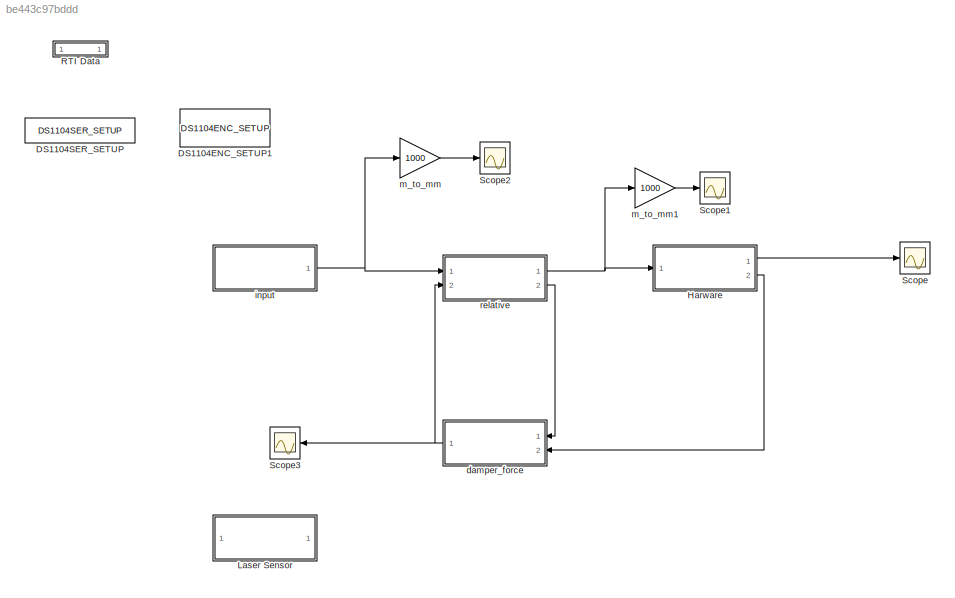
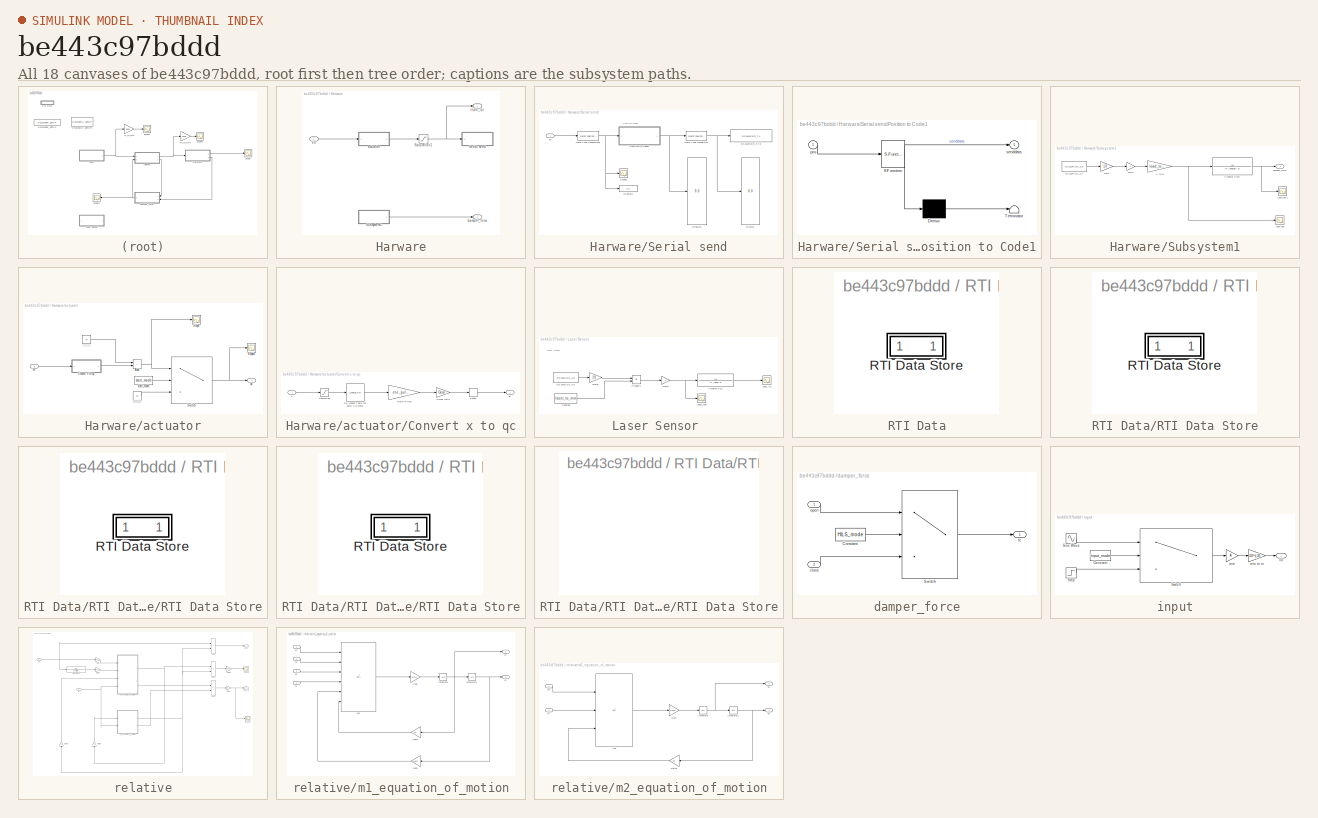
[diagram: thumbnail index - all 18 canvases of the model, root first then tree order]
MODEL slx_be443c97bddd
KIND model
CONFIG AbsTol = auto
CONFIG EnableMultiTasking = off
CONFIG FixedStep = 0.002
CONFIG InitFcn = % mode\nstart_mode = 1;\ninput_mode = 1;\nHILS_mode = 1;\n\n% input parameter\nA = 1;\nHz = 1;\nqc = 26500;\n\n% model parameter\nm1 = 1.5;\nm2 = 6.4;\nk1 = 2200;\nk2 = 405;\nc1 = 150;\nc2 = 7;\n\n% convert parameter\nGear = 113;\nenc_pulse = 500;\nload_to_N = 2;\nlaser_to_mm = 28\n\n% lowpass\nCutoff_diff = 20;\nT_diff = 1/(2*pi*Cutoff_diff);\nCutoff_loadcell = 20;\nT_loadcell = 1/(2*pi*Cutoff_loadcell);\nCutoff_laser = 20;\n...<+35ch>
CONFIG MaxStep = auto
CONFIG MinStep = auto
CONFIG PostLoadFcn = , if any(exist('dsrtsu_mdlpostloadfcn', 'file') == [2, 3, 6]), try dsrtsu_mdlpostloadfcn('Execute', bdroot); catch fprintf('Error in PostLoadFcn (dsrtsu_mdlpostloadfcn) for model "%s":\n %s\n', bdroot, lasterr); end, end, \n
CONFIG RelTol = 1e-3
CONFIG SampleTimeConstraint = Unconstrained
CONFIG Solver = ode4
CONFIG SolverName = ode4
CONFIG StartTime = 0.0
CONFIG StopTime = Inf
BLOCK [Reference] DS1104ENC_SETUP1  REF=rtilib1104/DS1104 MASTER PPC/DS1104ENC_SETUP
  Ports = []
  SourceBlock = rtilib1104/DS1104 MASTER PPC/DS1104ENC_SETUP
  SourceProductName = dSPACE RTI1104
  SourceType = RTI
BLOCK [Reference] DS1104SER_SETUP  REF=rti1104serlib/DS1104SER_SETUP
  Ports = []
  SourceBlock = rti1104serlib/DS1104SER_SETUP
  SourceType = RTI
BLOCK [SubSystem] Harware
  Ports = [1, 2]
  RequestExecContextInheritance = off
BLOCK [Saturate] Harware/Saturation2
  LowerLimit = 0
  UpperLimit = 47000
BLOCK [SubSystem] Harware/Serial send
  Ports = [1]
  RequestExecContextInheritance = off
BLOCK [Reference] Harware/Serial send/DS1104SER_TX3  REF=rti1104serlib/DS1104SER_TX
  Ports = [1]
  SourceBlock = rti1104serlib/DS1104SER_TX
  SourceType = RTI
BLOCK [DataTypeConversion] Harware/Serial send/Data Type Conversion
  OutDataTypeStr = uint8
  RndMeth = Floor
  SaturateOnIntegerOverflow = off
BLOCK [DataTypeConversion] Harware/Serial send/Data Type Conversion1
  OutDataTypeStr = double
  RndMeth = Ceiling
  SaturateOnIntegerOverflow = off
BLOCK [Display] Harware/Serial send/Display
  Decimation = 1
  Ports = [1]
BLOCK [Display] Harware/Serial send/Display1
  Decimation = 1
  Format = long
  Ports = [1]
BLOCK [Display] Harware/Serial send/Display2
  Decimation = 1
  Format = long
  Ports = [1]
BLOCK [SubSystem] Harware/Serial send/Position to Code1
  ErrorFcn = Stateflow.Translate.translate
  PermitHierarchicalResolution = ExplicitOnly
  Ports = [1, 1]
  RequestExecContextInheritance = off
  SFBlockType = MATLAB Function
  TreatAsAtomicUnit = on
BLOCK [Demux] Harware/Serial send/Position to Code1/ Demux 
  Outputs = 1
  Ports = [1, 1]
BLOCK [S-Function] Harware/Serial send/Position to Code1/ SFunction 
  EnableBusSupport = off
  FunctionName = sf_sfun
  PortCounts = [1 2]
  Ports = [1, 2]
  SFcnIsStateOwnerBlock = off
  SFunctionDeploymentMode = off
  Tag = Stateflow S-Function 1
BLOCK [Terminator] Harware/Serial send/Position to Code1/ Terminator 
BLOCK [Inport] Harware/Serial send/Position to Code1/pos
BLOCK [Outport] Harware/Serial send/Position to Code1/senddata
  VectorParamsAs1DForOutWhenUnconnected = off
BLOCK [Scope] Harware/Serial send/Scope2
  Floating = off
  NumInputPorts = 1
  Ports = [1]
  ScopeSpecificationString = Simulink.scopes.TimeScopeBlockCfg('CurrentConfiguration', extmgr.ConfigurationSet(extmgr.Configuration('Core','General UI',true),extmgr.Configuration('Core','Source UI',true),extmgr.Configuration('Sources','WiredSimulink',true,'DataLoggingVariableName','ScopeData2'),extmgr.Configuration('Visuals','Time Domain',true,'SerializedDisplays',{struct('MinYLimReal','17000.00000','MaxYLimReal','37000.00000...<+1465ch>
BLOCK [Inport] Harware/Serial send/x'0
BLOCK [SubSystem] Harware/Subsystem1
  Ports = [0, 1]
  RequestExecContextInheritance = off
BLOCK [Reference] Harware/Subsystem1/DS1104ADC_C7  REF=rtilib1104/DS1104 MASTER PPC/DS1104ADC_C5
  Ports = [0, 1]
  SourceBlock = rtilib1104/DS1104 MASTER PPC/DS1104ADC_C5
  SourceProductName = dSPACE RTI1104
  SourceType = RTI
BLOCK [Gain] Harware/Subsystem1/Gain
  Gain = -1
BLOCK [Gain] Harware/Subsystem1/Gain 
  Gain = 10
BLOCK [TransferFcn] Harware/Subsystem1/Transfer Fcn2
  Denominator = [T_loadcell 1]
BLOCK [Gain] Harware/Subsystem1/V to N
  Gain = load_to_N
BLOCK [Outport] Harware/Subsystem1/damper_force
  VectorParamsAs1DForOutWhenUnconnected = off
BLOCK [Scope] Harware/Subsystem1/load raw
  Floating = off
  NumInputPorts = 1
  Ports = [1]
  ScopeSpecificationString = Simulink.scopes.TimeScopeBlockCfg('CurrentConfiguration', extmgr.ConfigurationSet(extmgr.Configuration('Core','General UI',true),extmgr.Configuration('Core','Source UI',true),extmgr.Configuration('Sources','WiredSimulink',true,'DataLoggingVariableName','ScopeData4'),extmgr.Configuration('Visuals','Time Domain',true),extmgr.Configuration('Tools','Plot Navigation',true),extmgr.Configuration('Tools',...<+40ch>
BLOCK [Scope] Harware/Subsystem1/load raw1
  Floating = off
  NumInputPorts = 1
  Ports = [1]
  ScopeSpecificationString = Simulink.scopes.TimeScopeBlockCfg('CurrentConfiguration', extmgr.ConfigurationSet(extmgr.Configuration('Core','General UI',true),extmgr.Configuration('Core','Source UI',true),extmgr.Configuration('Sources','WiredSimulink',true,'DataLoggingVariableName','ScopeData5'),extmgr.Configuration('Visuals','Time Domain',true),extmgr.Configuration('Tools','Plot Navigation',true),extmgr.Configuration('Tools',...<+40ch>
BLOCK [SubSystem] Harware/actuator
  Ports = [1, 1]
  RequestExecContextInheritance = off
BLOCK [Sum] Harware/actuator/Add
  IconShape = rectangular
  Ports = [2, 1]
BLOCK [SubSystem] Harware/actuator/Convert x to qc
  Ports = [1, 1]
  RequestExecContextInheritance = off
BLOCK [Gain] Harware/actuator/Convert x to qc/1//Gear ratio
  Gain = Gear
BLOCK [Gain] Harware/actuator/Convert x to qc/Rad to Pulse
  Gain = enc_pulse*4/(2*pi)
BLOCK [Rounding] Harware/actuator/Convert x to qc/Round
  Operator = round
BLOCK [Saturate] Harware/actuator/Convert x to qc/Saturation
  LowerLimit = -0.25
  UpperLimit = 0.38
BLOCK [Lookup_n-D] Harware/actuator/Convert x to qc/n-D Lookup Table (90 data) x to theta
  BreakpointsForDimension1 = [-0.0255748\n-0.025224748\n-0.024865444\n-0.024496806\n-0.024118754\n-0.023731207\n-0.023334088\n-0.022927321\n-0.022510829\n-0.022084541\n-0.021648387\n-0.021202299\n-0.020746214\n-0.02028007\n-0.01980381\n-0.019317383\n-0.018820738\n-0.018313834\n-0.01779663\n-0.017269095\n-0.016731201\n-0.016182927\n-0.015624258\n-0.015055189\n-0.014475717\n-0.013885852\n-0.013285608\n-0.012675011\n-0.012054093\n-0.011422895\n-0.010781471\n-...<+720ch>
  BreakpointsForDimension3 = [5, 7]
  ExtrapMethod = Cubic spline
  InternalRulePriority = Speed
  InterpMethod = Cubic spline
  NumberOfTableDimensions = 1
  Ports = [1, 1]
  RndMeth = Simplest
  Table = [-0.785398163\n-0.767944871\n-0.750491578\n-0.733038286\n-0.715584993\n-0.698131701\n-0.680678408\n-0.663225116\n-0.645771823\n-0.628318531\n-0.610865238\n-0.593411946\n-0.575958653\n-0.558505361\n-0.541052068\n-0.523598776\n-0.506145483\n-0.488692191\n-0.471238898\n-0.453785606\n-0.436332313\n-0.41887902\n-0.401425728\n-0.383972435\n-0.366519143\n-0.34906585\n-0.331612558\n-0.314159265\n-0.296705973\n-0.27925268\n-0.261799388...<+717ch>
BLOCK [Outport] Harware/actuator/Convert x to qc/qc
  VectorParamsAs1DForOutWhenUnconnected = off
BLOCK [Inport] Harware/actuator/Convert x to qc/x
BLOCK [Scope] Harware/actuator/Scope
  Floating = off
  NumInputPorts = 1
  Ports = [1]
  ScopeSpecificationString = Simulink.scopes.TimeScopeBlockCfg('CurrentConfiguration', extmgr.ConfigurationSet(extmgr.Configuration('Core','General UI',true),extmgr.Configuration('Core','Source UI',true),extmgr.Configuration('Sources','WiredSimulink',true,'DataLoggingVariableName','ScopeData2'),extmgr.Configuration('Visuals','Time Domain',true),extmgr.Configuration('Tools','Plot Navigation',true),extmgr.Configuration('Tools',...<+40ch>
BLOCK [Scope] Harware/actuator/Scope1
  Floating = off
  NumInputPorts = 1
  Ports = [1]
  ScopeSpecificationString = Simulink.scopes.TimeScopeBlockCfg('CurrentConfiguration', extmgr.ConfigurationSet(extmgr.Configuration('Core','General UI',true),extmgr.Configuration('Core','Source UI',true),extmgr.Configuration('Sources','WiredSimulink',true,'DataLoggingVariableName','ScopeData3'),extmgr.Configuration('Visuals','Time Domain',true),extmgr.Configuration('Tools','Plot Navigation',true),extmgr.Configuration('Tools',...<+40ch>
BLOCK [Switch] Harware/actuator/Switch
  Criteria = u2 > Threshold
  InputSameDT = off
  SaturateOnIntegerOverflow = off
BLOCK [Outport] Harware/actuator/qc
  VectorParamsAs1DForOutWhenUnconnected = off
BLOCK [Constant] Harware/actuator/start_mode
  Value = start_mode
BLOCK [Inport] Harware/actuator/x'0
BLOCK [Constant] Harware/actuator/初期定数
  Value = qc
BLOCK [Constant] Harware/actuator/振動中心
  Value = qc
BLOCK [Outport] Harware/damper_force
  Port = 2
  VectorParamsAs1DForOutWhenUnconnected = off
BLOCK [Outport] Harware/input_qc
  VectorParamsAs1DForOutWhenUnconnected = off
BLOCK [Inport] Harware/x'0
BLOCK [SubSystem] Laser Sensor 
  Ports = []
  RequestExecContextInheritance = off
BLOCK [Constant] Laser Sensor /Constant
  Value = laser_to_mm
BLOCK [Reference] Laser Sensor /DS1104ADC_C5  REF=rtilib1104/DS1104 MASTER PPC/DS1104ADC_C5
  Ports = [0, 1]
  SourceBlock = rtilib1104/DS1104 MASTER PPC/DS1104ADC_C5
  SourceProductName = dSPACE RTI1104
  SourceType = RTI
BLOCK [Gain] Laser Sensor /Gain1
  Gain = 10
BLOCK [Gain] Laser Sensor /Gain2
  Gain = -1
BLOCK [Product] Laser Sensor /Product1
  Ports = [2, 1]
BLOCK [TransferFcn] Laser Sensor /Transfer Fcn
  Denominator = [T_laser 1]
BLOCK [Scope] Laser Sensor /laser_-x1
  Floating = off
  NumInputPorts = 1
  Ports = [1]
  ScopeSpecificationString = Simulink.scopes.TimeScopeBlockCfg('CurrentConfiguration', extmgr.ConfigurationSet(extmgr.Configuration('Core','General UI',true),extmgr.Configuration('Core','Source UI',true),extmgr.Configuration('Sources','WiredSimulink',true,'DataLoggingVariableName','ScopeData1'),extmgr.Configuration('Visuals','Time Domain',true,'SerializedDisplays',{struct('MinYLimReal','-1.00000','MaxYLimReal','1.00000','YLab...<+1359ch>
BLOCK [Scope] Laser Sensor /laser_raw
  Floating = off
  NumInputPorts = 1
  Ports = [1]
  ScopeSpecificationString = Simulink.scopes.TimeScopeBlockCfg('CurrentConfiguration', extmgr.ConfigurationSet(extmgr.Configuration('Core','General UI',true),extmgr.Configuration('Core','Source UI',true),extmgr.Configuration('Sources','WiredSimulink',true,'DataLoggingVariableName','ScopeData1'),extmgr.Configuration('Visuals','Time Domain',true,'SerializedDisplays',{struct('MinYLimReal','-1.00000','MaxYLimReal','1.00000','YLab...<+1359ch>
BLOCK [SubSystem] RTI Data
  CopyFcn = if exist('rtidc'), try,  rtidc('DataHostBlockClbCopy', gcbh); catch, disp(['Warning: ''CopyFcn'' for RTI Data block failed: ' lasterr]); end, end,
  DeleteFcn = if exist('rtidc'), try,  rtidc('DataHostBlockClbDelete', gcbh); catch, disp(['Warning: ''DeleteFcn'' for RTI Data block failed: ' lasterr]); end, end,
  LoadFcn = if exist('rtidc'), try,  rtidc('DataHostBlockClbLoad', gcbh); catch, disp(['Warning: ''LoadFcn'' for RTI Data block failed: ' lasterr]); end, end,
  ModelCloseFcn = if exist('rtidc'), try,  rtidc('DataHostBlockClbModelClose', gcbh); catch, disp(['Warning: ''ModelCloseFcn'' for RTI Data block failed: ' lasterr]); end, end,
  NameChangeFcn = if exist('rtidc'), try,  rtidc('DataHostBlockClbNameChange', gcbh); catch, disp(['Warning: ''NameChangeFcn'' for RTI Data block failed: ' lasterr]); end, end,
  Ports = []
  PostSaveFcn = if exist('rtidc'), try,  rtidc('DataHostBlockClbPostSave', gcbh); catch, disp(['Warning: ''PostSaveFcn'' for RTI Data block failed: ' lasterr]); end, end,
  PreSaveFcn = if exist('rtidc'), try,  rtidc('DataHostBlockClbPreSave', gcbh); catch, disp(['Warning: ''PreSaveFcn'' for RTI Data block failed: ' lasterr]); end, end,
  RequestExecContextInheritance = off
  Tag = struct('RTIDataServer',struct('RTIDataServerVs','2','RTIModelDescription','struct(''main'',''HILS_ralative'',''sub'','''',''isMp'',0)'))
BLOCK [SubSystem] RTI Data/RTI Data Store
  Ports = []
  RequestExecContextInheritance = off
  Tag = struct('private',struct('version',struct('dsVer',uint32(2),'dsVerCreation',uint32(2),'RTI',struct('ver','7.10','type','RTI1104')),'access',struct('type','Model','isPerm',1,'created',['23-Dec-2020 21:16:23'],'modified',['30-Dec-2020 20:58:09'],'location','')),'public',struct('main',struct('data',[]),'sub',struct('name',{{'HILS_ralative'}},'data',{{struct('TH',struct('thTaskInfo',struct('taskType',{...<+891ch>
BLOCK [SubSystem] RTI Data/RTI Data Store/RTI Data Store
  Ports = []
  RequestExecContextInheritance = off
BLOCK [SubSystem] RTI Data/RTI Data Store/RTI Data Store/RTI Data Store
  Ports = []
  RequestExecContextInheritance = off
BLOCK [SubSystem] RTI Data/RTI Data Store/RTI Data Store/RTI Data Store/RTI Data Store
  Ports = []
  RequestExecContextInheritance = off
BLOCK [Scope] Scope
  Floating = off
  NumInputPorts = 1
  Ports = [1]
  ScopeSpecificationString = Simulink.scopes.TimeScopeBlockCfg('CurrentConfiguration', extmgr.ConfigurationSet(extmgr.Configuration('Core','General UI',true),extmgr.Configuration('Core','Source UI',true),extmgr.Configuration('Sources','WiredSimulink',true,'DataLoggingVariableName','ScopeData1'),extmgr.Configuration('Visuals','Time Domain',true,'SerializedDisplays',{struct('MinYLimReal','23977.625','MaxYLimReal','28961.375','Y...<+1382ch>
BLOCK [Scope] Scope1
  Floating = off
  NumInputPorts = 1
  Ports = [1]
  ScopeSpecificationString = Simulink.scopes.TimeScopeBlockCfg('CurrentConfiguration', extmgr.ConfigurationSet(extmgr.Configuration('Core','General UI',true),extmgr.Configuration('Core','Source UI',true),extmgr.Configuration('Sources','WiredSimulink',true,'DataLoggingVariableName','ScopeData1'),extmgr.Configuration('Visuals','Time Domain',true,'SerializedDisplays',{struct('MinYLimReal','-2.95308','MaxYLimReal','2.95308','YLab...<+1367ch>
BLOCK [Scope] Scope2
  Floating = off
  NumInputPorts = 1
  Ports = [1]
  ScopeSpecificationString = Simulink.scopes.TimeScopeBlockCfg('CurrentConfiguration', extmgr.ConfigurationSet(extmgr.Configuration('Core','General UI',true),extmgr.Configuration('Core','Source UI',true),extmgr.Configuration('Sources','WiredSimulink',true,'DataLoggingVariableName','ScopeData2'),extmgr.Configuration('Visuals','Time Domain',true,'SerializedDisplays',{struct('MinYLimReal','-1.25','MaxYLimReal','1.25','YLabelReal...<+1348ch>
BLOCK [Scope] Scope3
  Floating = off
  NumInputPorts = 1
  Ports = [1]
  ScopeSpecificationString = Simulink.scopes.TimeScopeBlockCfg('CurrentConfiguration', extmgr.ConfigurationSet(extmgr.Configuration('Core','General UI',true),extmgr.Configuration('Core','Source UI',true),extmgr.Configuration('Sources','WiredSimulink',true,'DataLoggingVariableName','ScopeData3'),extmgr.Configuration('Visuals','Time Domain',true,'SerializedDisplays',{struct('MinYLimReal','-0.11322','MaxYLimReal','0.11322','YLab...<+1359ch>
BLOCK [SubSystem] damper_force
  Ports = [2, 1]
  RequestExecContextInheritance = off
BLOCK [Constant] damper_force/Constant
  Value = HILS_mode
BLOCK [Switch] damper_force/Switch
  Criteria = u2 > Threshold
  InputSameDT = off
  SaturateOnIntegerOverflow = off
BLOCK [Inport] damper_force/close
  Port = 2
BLOCK [Outport] damper_force/fc
  VectorParamsAs1DForOutWhenUnconnected = off
BLOCK [Inport] damper_force/open
BLOCK [SubSystem] input
  Ports = [0, 1]
  RequestExecContextInheritance = off
BLOCK [Constant] input/Constant
  Value = input_mode
BLOCK [Sin] input/Sine Wave
  Frequency = 2*pi*Hz
  Ports = [0, 1]
  SampleTime = 0
BLOCK [Step] input/Step
  SampleTime = 0
  Time = 2
BLOCK [Switch] input/Switch
  Criteria = u2 > Threshold
  InputSameDT = off
  SaturateOnIntegerOverflow = off
BLOCK [Gain] input/mm
  Gain = A
BLOCK [Gain] input/mm to m
  Gain = 10^(-3)
BLOCK [Outport] input/x0
  VectorParamsAs1DForOutWhenUnconnected = off
BLOCK [Gain] m_to_mm
  Gain = 1000
BLOCK [Gain] m_to_mm1
  Gain = 1000
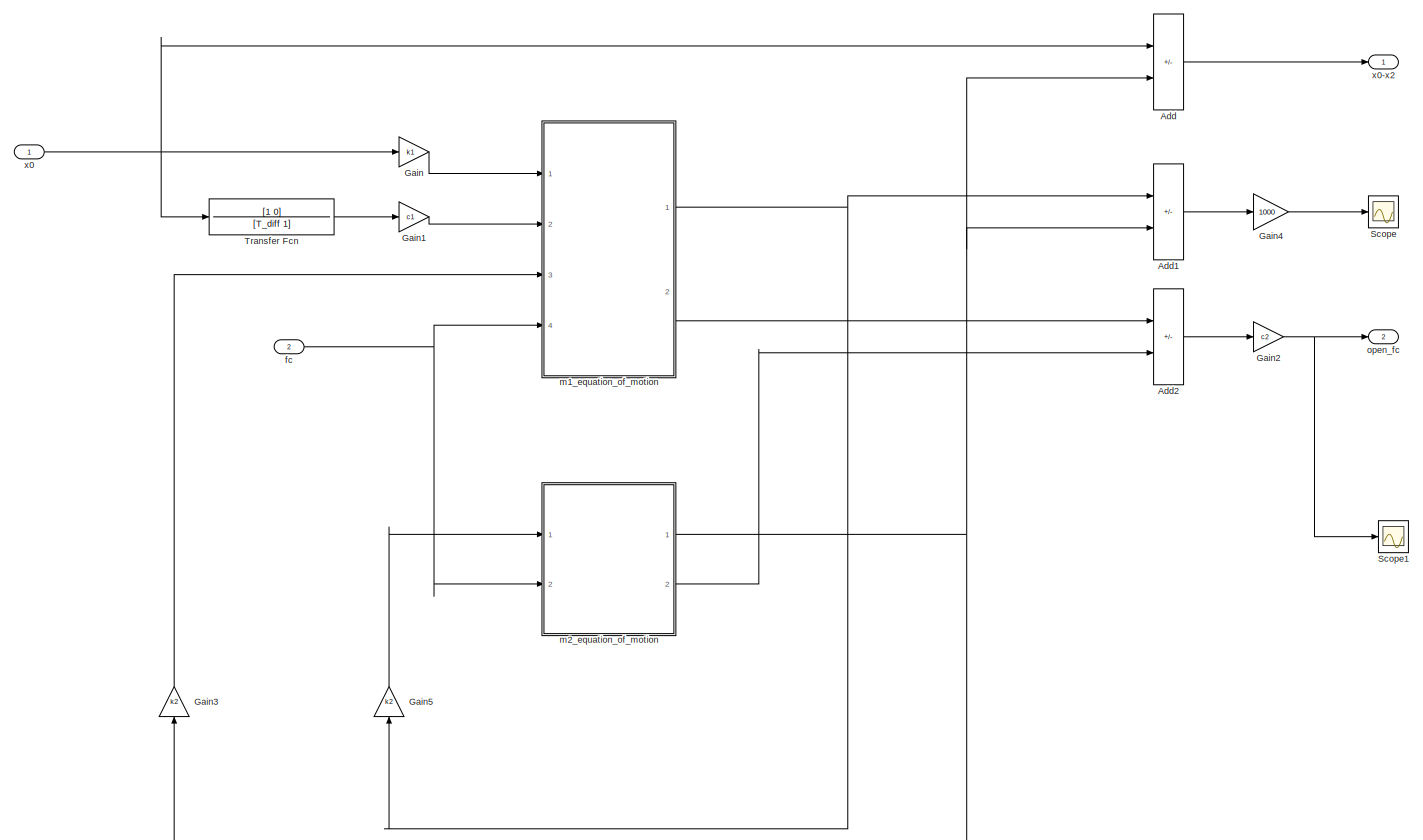
[diagram: relative - part 1/1, most of the canvas]
BLOCK [SubSystem] relative
  Ports = [2, 2]
  RequestExecContextInheritance = off
BLOCK [Sum] relative/Add
  IconShape = rectangular
  Inputs = +-
  Ports = [2, 1]
BLOCK [Sum] relative/Add1
  IconShape = rectangular
  Inputs = -+
  Ports = [2, 1]
BLOCK [Sum] relative/Add2
  IconShape = rectangular
  Inputs = -+
  Ports = [2, 1]
BLOCK [Gain] relative/Gain
  Gain = k1
BLOCK [Gain] relative/Gain1
  Gain = c1
BLOCK [Gain] relative/Gain2
  Gain = c2
BLOCK [Gain] relative/Gain3
  Gain = k2
  NameLocation = right
BLOCK [Gain] relative/Gain4
  Gain = 1000
BLOCK [Gain] relative/Gain5
  Gain = k2
  NameLocation = right
BLOCK [Scope] relative/Scope
  Floating = off
  NumInputPorts = 1
  Ports = [1]
  ScopeSpecificationString = Simulink.scopes.TimeScopeBlockCfg('CurrentConfiguration', extmgr.ConfigurationSet(extmgr.Configuration('Core','General UI',true),extmgr.Configuration('Core','Source UI',true),extmgr.Configuration('Sources','WiredSimulink',true),extmgr.Configuration('Visuals','Time Domain',true,'SerializedDisplays',{struct('MinYLimReal','-0.00257','MaxYLimReal','0.00257','YLabelReal','','MinYLimMag','0.00000','MaxY...<+1324ch>
BLOCK [Scope] relative/Scope1
  Floating = off
  NumInputPorts = 1
  Ports = [1]
  ScopeSpecificationString = Simulink.scopes.TimeScopeBlockCfg('CurrentConfiguration', extmgr.ConfigurationSet(extmgr.Configuration('Core','General UI',true),extmgr.Configuration('Core','Source UI',true),extmgr.Configuration('Sources','WiredSimulink',true,'DataLoggingVariableName','ScopeData4'),extmgr.Configuration('Visuals','Time Domain',true,'SerializedDisplays',{struct('MinYLimReal','-0.00257','MaxYLimReal','0.00257','YLab...<+1363ch>
BLOCK [TransferFcn] relative/Transfer Fcn
  Commented = on
  Denominator = [T_diff 1]
  Numerator = [1 0]
BLOCK [Inport] relative/fc
  Port = 2
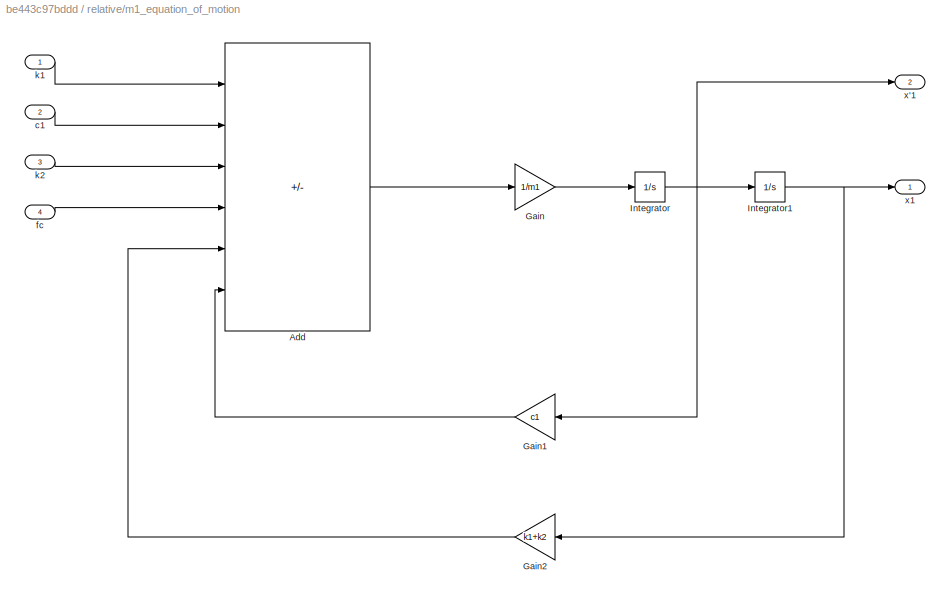
BLOCK [SubSystem] relative/m1_equation_of_motion
  Ports = [4, 2]
  RequestExecContextInheritance = off
BLOCK [Sum] relative/m1_equation_of_motion/Add
  IconShape = rectangular
  Inputs = ++++--
  Ports = [6, 1]
BLOCK [Gain] relative/m1_equation_of_motion/Gain
  Gain = 1/m1
BLOCK [Gain] relative/m1_equation_of_motion/Gain1
  Gain = c1
BLOCK [Gain] relative/m1_equation_of_motion/Gain2
  Gain = k1+k2
BLOCK [Integrator] relative/m1_equation_of_motion/Integrator
  Ports = [1, 1]
BLOCK [Integrator] relative/m1_equation_of_motion/Integrator1
  Ports = [1, 1]
BLOCK [Inport] relative/m1_equation_of_motion/c1
  Port = 2
BLOCK [Inport] relative/m1_equation_of_motion/fc
  Port = 4
BLOCK [Inport] relative/m1_equation_of_motion/k1
BLOCK [Inport] relative/m1_equation_of_motion/k2
  Port = 3
BLOCK [Outport] relative/m1_equation_of_motion/x'1
  Port = 2
  VectorParamsAs1DForOutWhenUnconnected = off
BLOCK [Outport] relative/m1_equation_of_motion/x1
  VectorParamsAs1DForOutWhenUnconnected = off
BLOCK [SubSystem] relative/m2_equation_of_motion
  Ports = [2, 2]
  RequestExecContextInheritance = off
BLOCK [Sum] relative/m2_equation_of_motion/Add
  IconShape = rectangular
  Inputs = +--
  Ports = [3, 1]
BLOCK [Gain] relative/m2_equation_of_motion/Gain
  Gain = 1/m2
BLOCK [Gain] relative/m2_equation_of_motion/Gain2
  Gain = k2
BLOCK [Integrator] relative/m2_equation_of_motion/Integrator
  Ports = [1, 1]
BLOCK [Integrator] relative/m2_equation_of_motion/Integrator1
  Ports = [1, 1]
BLOCK [Inport] relative/m2_equation_of_motion/fc
  Port = 2
BLOCK [Inport] relative/m2_equation_of_motion/k2
BLOCK [Outport] relative/m2_equation_of_motion/x'2
  Port = 2
  VectorParamsAs1DForOutWhenUnconnected = off
BLOCK [Outport] relative/m2_equation_of_motion/x2
  VectorParamsAs1DForOutWhenUnconnected = off
BLOCK [Outport] relative/open_fc
  Port = 2
  VectorParamsAs1DForOutWhenUnconnected = off
BLOCK [Inport] relative/x0
BLOCK [Outport] relative/x0-x2
  VectorParamsAs1DForOutWhenUnconnected = off
ANNOTATION Harware/Serial send: Position mode
ANNOTATION Laser Sensor : Laser Sensor
NET Harware/Saturation2:1 -> Harware/Serial send:1, Harware/input_qc:1
NET Harware/Serial send/Data Type Conversion1:1 -> Harware/Serial send/Display2:1, Harware/Serial send/Position to Code1:1, Harware/Serial send/Scope2:1
NET Harware/Serial send/Data Type Conversion:1 -> Harware/Serial send/DS1104SER_TX3:1, Harware/Serial send/Display:1
NET Harware/Serial send/Position to Code1:1 -> Harware/Serial send/Data Type Conversion:1, Harware/Serial send/Display1:1
LINE Harware/Serial send/x'0:1 -> Harware/Serial send/Data Type Conversion1:1
LINE Harware/Subsystem1/DS1104ADC_C7:1 -> Harware/Subsystem1/Gain :1
LINE Harware/Subsystem1/Gain :1 -> Harware/Subsystem1/Gain:1
LINE Harware/Subsystem1/Gain:1 -> Harware/Subsystem1/V to N:1
NET Harware/Subsystem1/Transfer Fcn2:1 -> Harware/Subsystem1/damper_force:1, Harware/Subsystem1/load raw1:1
NET Harware/Subsystem1/V to N:1 -> Harware/Subsystem1/Transfer Fcn2:1, Harware/Subsystem1/load raw:1
LINE Harware/Subsystem1:1 -> Harware/damper_force:1
NET Harware/actuator/Add:1 -> Harware/actuator/Scope:1, Harware/actuator/Switch:1
LINE Harware/actuator/Convert x to qc/1//Gear ratio:1 -> Harware/actuator/Convert x to qc/Round:1
LINE Harware/actuator/Convert x to qc/Rad to Pulse:1 -> Harware/actuator/Convert x to qc/1//Gear ratio:1
LINE Harware/actuator/Convert x to qc/Round:1 -> Harware/actuator/Convert x to qc/qc:1
LINE Harware/actuator/Convert x to qc/Saturation:1 -> Harware/actuator/Convert x to qc/n-D Lookup Table (90 data) x to theta:1
LINE Harware/actuator/Convert x to qc/n-D Lookup Table (90 data) x to theta:1 -> Harware/actuator/Convert x to qc/Rad to Pulse:1
LINE Harware/actuator/Convert x to qc/x:1 -> Harware/actuator/Convert x to qc/Saturation:1
LINE Harware/actuator/Convert x to qc:1 -> Harware/actuator/Add:2
NET Harware/actuator/Switch:1 -> Harware/actuator/Scope1:1, Harware/actuator/qc:1
LINE Harware/actuator/start_mode:1 -> Harware/actuator/Switch:2
LINE Harware/actuator/x'0:1 -> Harware/actuator/Convert x to qc:1
LINE Harware/actuator/初期定数:1 -> Harware/actuator/Switch:3
LINE Harware/actuator/振動中心:1 -> Harware/actuator/Add:1
LINE Harware/actuator:1 -> Harware/Saturation2:1
LINE Harware/x'0:1 -> Harware/actuator:1
LINE Harware:1 -> Scope:1
LINE Harware:2 -> damper_force:2
LINE Laser Sensor /Constant:1 -> Laser Sensor /Product1:2
LINE Laser Sensor /DS1104ADC_C5:1 -> Laser Sensor /Gain1:1
LINE Laser Sensor /Gain1:1 -> Laser Sensor /Product1:1
NET Laser Sensor /Gain2:1 -> Laser Sensor /Transfer Fcn:1, Laser Sensor /laser_raw:1
LINE Laser Sensor /Product1:1 -> Laser Sensor /Gain2:1
LINE Laser Sensor /Transfer Fcn:1 -> Laser Sensor /laser_-x1:1
LINE damper_force/Constant:1 -> damper_force/Switch:2
LINE damper_force/Switch:1 -> damper_force/fc:1
LINE damper_force/close:1 -> damper_force/Switch:3
LINE damper_force/open:1 -> damper_force/Switch:1
NET damper_force:1 -> Scope3:1, relative:2
LINE input/Constant:1 -> input/Switch:2
LINE input/Sine Wave:1 -> input/Switch:1
LINE input/Step:1 -> input/Switch:3
LINE input/Switch:1 -> input/mm:1
LINE input/mm to m:1 -> input/x0:1
LINE input/mm:1 -> input/mm to m:1
NET input:1 -> m_to_mm:1, relative:1
LINE m_to_mm1:1 -> Scope1:1
LINE m_to_mm:1 -> Scope2:1
LINE relative/Add1:1 -> relative/Gain4:1
LINE relative/Add2:1 -> relative/Gain2:1
LINE relative/Add:1 -> relative/x0-x2:1
LINE relative/Gain1:1 -> relative/m1_equation_of_motion:2
NET relative/Gain2:1 -> relative/Scope1:1, relative/open_fc:1
LINE relative/Gain3:1 -> relative/m1_equation_of_motion:3
LINE relative/Gain4:1 -> relative/Scope:1
LINE relative/Gain5:1 -> relative/m2_equation_of_motion:1
LINE relative/Gain:1 -> relative/m1_equation_of_motion:1
LINE relative/Transfer Fcn:1 -> relative/Gain1:1
NET relative/fc:1 -> relative/m1_equation_of_motion:4, relative/m2_equation_of_motion:2
LINE relative/m1_equation_of_motion/Add:1 -> relative/m1_equation_of_motion/Gain:1
LINE relative/m1_equation_of_motion/Gain1:1 -> relative/m1_equation_of_motion/Add:6
LINE relative/m1_equation_of_motion/Gain2:1 -> relative/m1_equation_of_motion/Add:5
LINE relative/m1_equation_of_motion/Gain:1 -> relative/m1_equation_of_motion/Integrator:1
NET relative/m1_equation_of_motion/Integrator1:1 -> relative/m1_equation_of_motion/Gain2:1, relative/m1_equation_of_motion/x1:1
NET relative/m1_equation_of_motion/Integrator:1 -> relative/m1_equation_of_motion/Gain1:1, relative/m1_equation_of_motion/Integrator1:1, relative/m1_equation_of_motion/x'1:1
LINE relative/m1_equation_of_motion/c1:1 -> relative/m1_equation_of_motion/Add:2
LINE relative/m1_equation_of_motion/fc:1 -> relative/m1_equation_of_motion/Add:4
LINE relative/m1_equation_of_motion/k1:1 -> relative/m1_equation_of_motion/Add:1
LINE relative/m1_equation_of_motion/k2:1 -> relative/m1_equation_of_motion/Add:3
NET relative/m1_equation_of_motion:1 -> relative/Add1:1, relative/Gain5:1
LINE relative/m1_equation_of_motion:2 -> relative/Add2:1
LINE relative/m2_equation_of_motion/Add:1 -> relative/m2_equation_of_motion/Gain:1
LINE relative/m2_equation_of_motion/Gain2:1 -> relative/m2_equation_of_motion/Add:3
LINE relative/m2_equation_of_motion/Gain:1 -> relative/m2_equation_of_motion/Integrator:1
NET relative/m2_equation_of_motion/Integrator1:1 -> relative/m2_equation_of_motion/Gain2:1, relative/m2_equation_of_motion/x2:1
NET relative/m2_equation_of_motion/Integrator:1 -> relative/m2_equation_of_motion/Integrator1:1, relative/m2_equation_of_motion/x'2:1
LINE relative/m2_equation_of_motion/fc:1 -> relative/m2_equation_of_motion/Add:2
LINE relative/m2_equation_of_motion/k2:1 -> relative/m2_equation_of_motion/Add:1
NET relative/m2_equation_of_motion:1 -> relative/Add1:2, relative/Add:2, relative/Gain3:1
LINE relative/m2_equation_of_motion:2 -> relative/Add2:2
NET relative/x0:1 -> relative/Add:1, relative/Gain:1, relative/Transfer Fcn:1
NET relative:1 -> Harware:1, m_to_mm1:1
LINE relative:2 -> damper_force:1
note: NET lines group one-source signal fan-out (src -> all destinations, sorted); 1:1 wires keep LINE
CHART Harware/Serial send/Position to Code1 states=1 transitions=1
  STATE_LABEL 'eML_blk_kernel()'
  STATE_LABEL "SCRIPT:\n% script_sendTargetPosition\n% MATLAB EPOS LibraryのsendTargetPosition()から書き換え\n\n% function [] = sendTargetPosition( obj, pos )\n\nfunction senddata = func_sendTargetPosition(pos)\n% pos = 20480;\n\n%Sets the TargetPosition for Profile Position mode\n%pos must be an integer.\npos_hex = '';\n\nif pos >= 0\n    pos_hex = dec2hex(pos, 8);\nelse\n    pos_hex = dec2hex(2^32+pos, 8);\nend\n\n%% Build write object...<+2823ch>"
CHART  states=0 transitions=0
